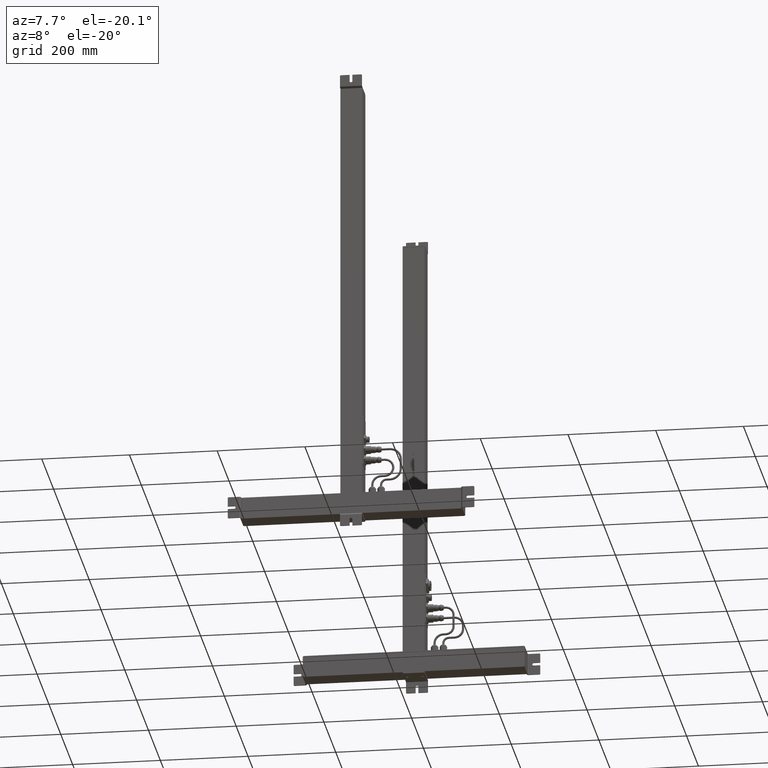
[diagram: clean part render]
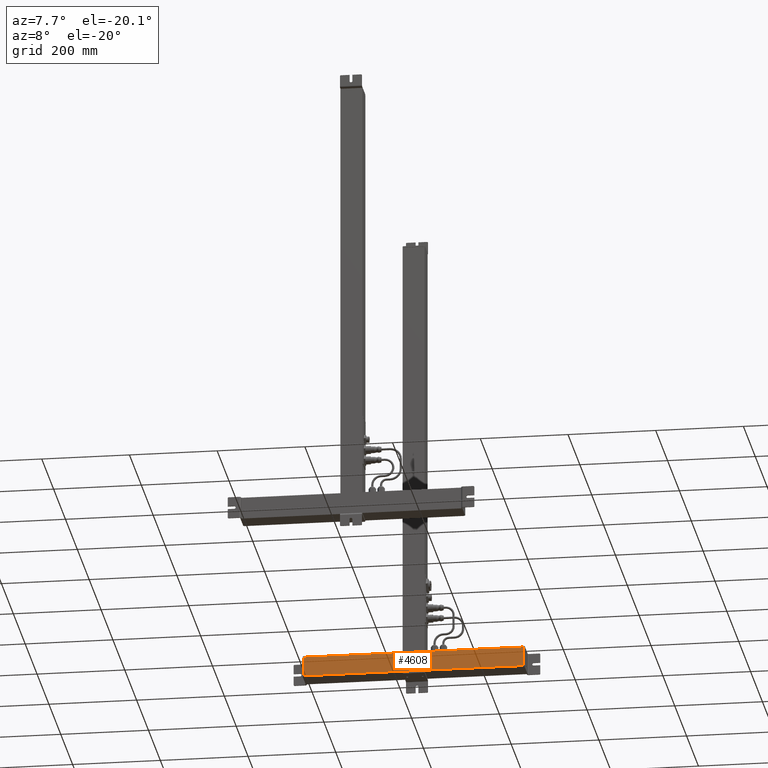
[diagram: same view with one face highlighted and labeled with its STEP entity id]
A machine part, auxiliary view. The second image highlights one B-rep face of the part: STEP entity #4608.
In plain terms, the highlighted planar face has unit normal (0, -1, 0).
Its self-contained STEP definition (entity closure, byte-faithful):
#4525=CARTESIAN_POINT('Vertex',(2.5,49.,0.)) ;
#4528=CARTESIAN_POINT('Line Origine',(25.,49.,0.)) ;
#4532=CARTESIAN_POINT('Vertex',(47.5,49.,0.)) ;
#4565=CARTESIAN_POINT('Vertex',(2.5,49.,500.)) ;
#4568=CARTESIAN_POINT('Line Origine',(2.5,49.,250.)) ;
#4585=CARTESIAN_POINT('Axis2P3D Location',(47.5,49.,0.)) ;
#4590=CARTESIAN_POINT('Line Origine',(47.5,49.,250.)) ;
#4594=CARTESIAN_POINT('Vertex',(47.5,49.,500.)) ;
#4597=CARTESIAN_POINT('Line Origine',(25.,49.,500.)) ;
#4529=DIRECTION('Vector Direction',(-1.,0.,0.)) ;
#4569=DIRECTION('Vector Direction',(0.,0.,1.)) ;
#4586=DIRECTION('Axis2P3D Direction',(0.,1.,-0.)) ;
#4587=DIRECTION('Axis2P3D XDirection',(-1.,0.,0.)) ;
#4591=DIRECTION('Vector Direction',(0.,0.,1.)) ;
#4598=DIRECTION('Vector Direction',(-1.,0.,0.)) ;
#4588=AXIS2_PLACEMENT_3D('Plane Axis2P3D',#4585,#4586,#4587) ;
#4603=ORIENTED_EDGE('',*,*,#4596,.F.) ;
#4604=ORIENTED_EDGE('',*,*,#4534,.F.) ;
#4605=ORIENTED_EDGE('',*,*,#4572,.T.) ;
#4606=ORIENTED_EDGE('',*,*,#4601,.F.) ;
#4530=VECTOR('Line Direction',#4529,1.) ;
#4570=VECTOR('Line Direction',#4569,1.) ;
#4592=VECTOR('Line Direction',#4591,1.) ;
#4599=VECTOR('Line Direction',#4598,1.) ;
#4608=ADVANCED_FACE('Body.2',(#4607),#4589,.T.) ;
#4534=EDGE_CURVE('',#4526,#4533,#4531,.F.) ;
#4572=EDGE_CURVE('',#4526,#4566,#4571,.T.) ;
#4596=EDGE_CURVE('',#4533,#4595,#4593,.T.) ;
#4601=EDGE_CURVE('',#4595,#4566,#4600,.T.) ;
#4602=EDGE_LOOP('',(#4603,#4604,#4605,#4606)) ;
#4607=FACE_OUTER_BOUND('',#4602,.T.) ;
#4531=LINE('Line',#4528,#4530) ;
#4571=LINE('Line',#4568,#4570) ;
#4593=LINE('Line',#4590,#4592) ;
#4600=LINE('Line',#4597,#4599) ;
#4589=PLANE('Plane',#4588) ;
#4526=VERTEX_POINT('',#4525) ;
#4533=VERTEX_POINT('',#4532) ;
#4566=VERTEX_POINT('',#4565) ;
#4595=VERTEX_POINT('',#4594) ;